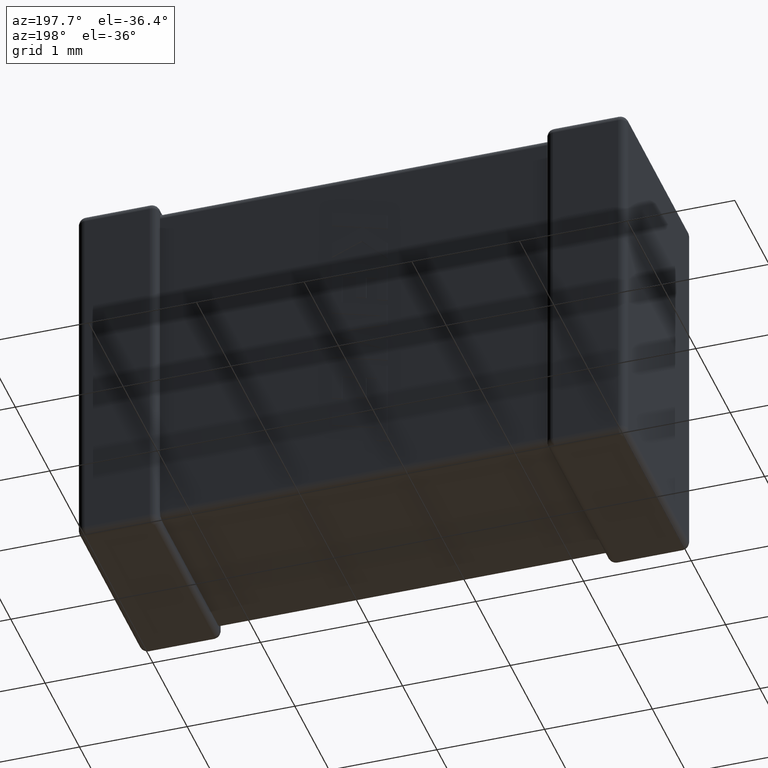
[diagram: clean part render]
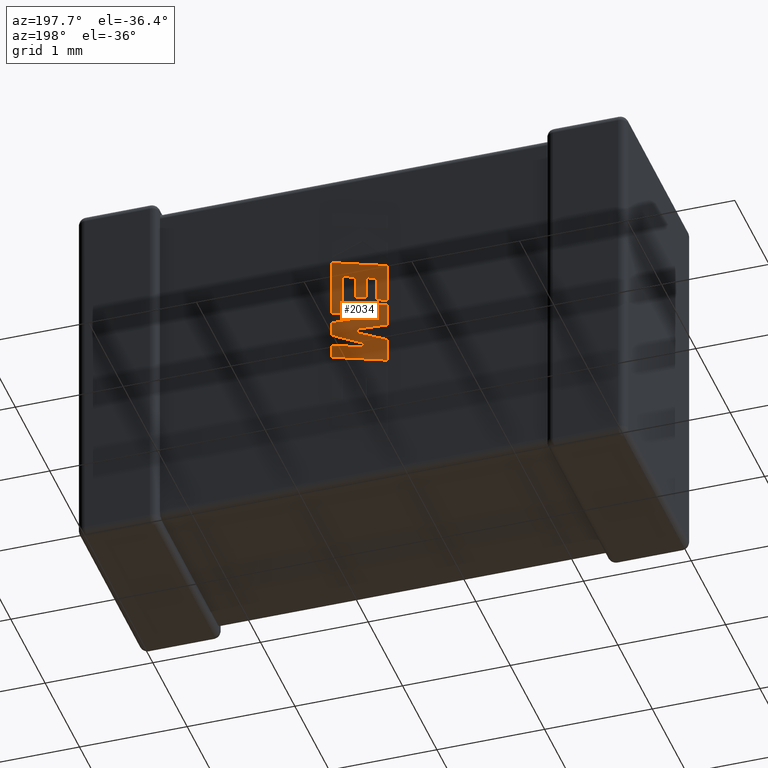
[diagram: same view with one face highlighted and labeled with its STEP entity id]
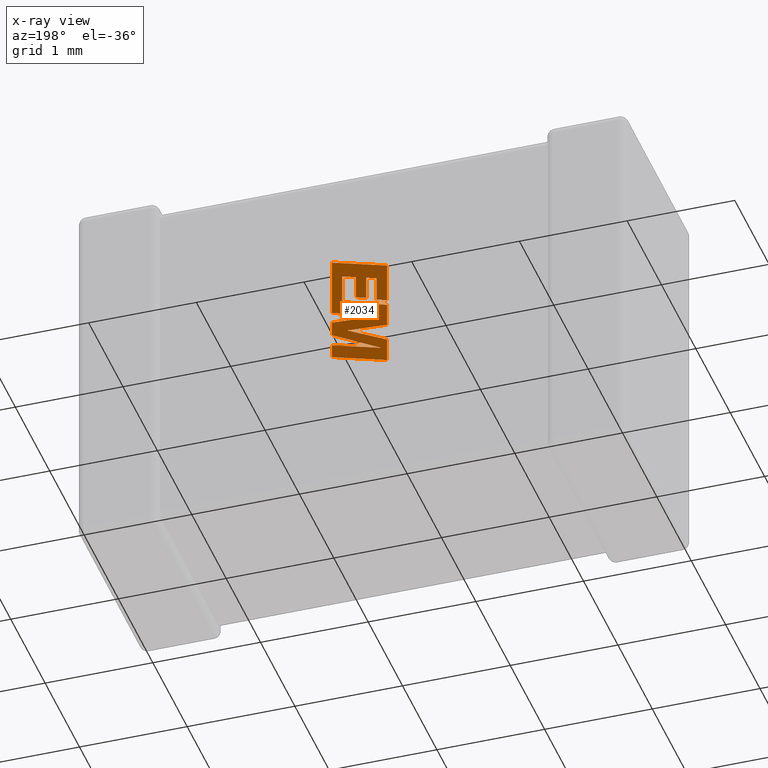
[diagram: x-ray of the same camera — body ghosted, the highlighted face saturated]
A machine part, auxiliary view. The second image highlights one B-rep face of the part: STEP entity #2034.
The next image is the same camera in x-ray: the body ghosted, the highlighted face saturated — about 0% of this face is hidden behind the body in this view.
In plain terms, the highlighted planar face has unit normal (0, -1, 0).
Its self-contained STEP definition (entity closure, byte-faithful):
#8 = CARTESIAN_POINT ( 'NONE',  ( 2.337401225116401360, 1.832200000000000051, -1.255934090619534649 ) ) ;
#12 = DIRECTION ( 'NONE',  ( 0.000000000000000000, 0.000000000000000000, 1.000000000000000000 ) ) ;
#36 = CARTESIAN_POINT ( 'NONE',  ( 2.239461455074788443, 1.832200000000000051, -1.788625948747415650 ) ) ;
#152 = VECTOR ( 'NONE', #548, 1000.000000000000000 ) ;
#173 = LINE ( 'NONE', #2790, #1969 ) ;
#176 = CARTESIAN_POINT ( 'NONE',  ( 2.754000000000007109, 1.832200000000000051, -1.650160399609248874 ) ) ;
#187 = ORIENTED_EDGE ( 'NONE', *, *, #1485, .T. ) ;
#250 = CARTESIAN_POINT ( 'NONE',  ( 2.337401225116401360, 1.832200000000000051, -1.255934090619534649 ) ) ;
#276 = DIRECTION ( 'NONE',  ( 0.8958676361826827250, 0.000000000000000000, 0.4443210308329466618 ) ) ;
#284 = VECTOR ( 'NONE', #3507, 1000.000000000000000 ) ;
#293 = ORIENTED_EDGE ( 'NONE', *, *, #1596, .T. ) ;
#370 = LINE ( 'NONE', #3753, #1376 ) ;
#376 = VECTOR ( 'NONE', #2067, 1000.000000000000114 ) ;
#428 = CARTESIAN_POINT ( 'NONE',  ( 2.656108729707781002, 1.832200000000000051, -1.164510496710604137 ) ) ;
#437 = DIRECTION ( 'NONE',  ( 0.000000000000000000, 0.000000000000000000, 1.000000000000000000 ) ) ;
#451 = LINE ( 'NONE', #176, #4086 ) ;
#492 = CARTESIAN_POINT ( 'NONE',  ( 2.754000000000007109, 1.832200000000000051, -1.898139623118868524 ) ) ;
#494 = ORIENTED_EDGE ( 'NONE', *, *, #3045, .T. ) ;
#548 = DIRECTION ( 'NONE',  ( 0.000000000000000000, 0.000000000000000000, -1.000000000000000000 ) ) ;
#559 = CARTESIAN_POINT ( 'NONE',  ( 2.607054402578548036, 1.832200000000000051, -1.768838267633026984 ) ) ;
#572 = DIRECTION ( 'NONE',  ( -0.8843386665637650301, 0.000000000000000000, -0.4668459304955136502 ) ) ;
#578 = CARTESIAN_POINT ( 'NONE',  ( 2.239461455074788443, 1.832200000000000051, -1.569502186183909798 ) ) ;
#587 = VECTOR ( 'NONE', #3429, 1000.000000000000114 ) ;
#626 = CARTESIAN_POINT ( 'NONE',  ( 2.239461455074788443, 1.832200000000000051, -1.951152340343301539 ) ) ;
#637 = ORIENTED_EDGE ( 'NONE', *, *, #2905, .T. ) ;
#660 = CARTESIAN_POINT ( 'NONE',  ( 2.754000000000007109, 1.832200000000000051, -2.028891821030526010 ) ) ;
#688 = EDGE_CURVE ( 'NONE', #4521, #4432, #173, .T. ) ;
#709 = VERTEX_POINT ( 'NONE', #559 ) ;
#740 = VECTOR ( 'NONE', #3316, 1000.000000000000000 ) ;
#766 = VECTOR ( 'NONE', #2901, 1000.000000000000000 ) ;
#789 = VERTEX_POINT ( 'NONE', #4118 ) ;
#803 = LINE ( 'NONE', #428, #1151 ) ;
#808 = CARTESIAN_POINT ( 'NONE',  ( 2.239461455074788443, 1.832200000000000051, -1.569502186183909798 ) ) ;
#836 = CARTESIAN_POINT ( 'NONE',  ( 2.337401225116401360, 1.832200000000000051, -1.490363109686198895 ) ) ;
#838 = VECTOR ( 'NONE', #1605, 1000.000000000000114 ) ;
#890 = VERTEX_POINT ( 'NONE', #578 ) ;
#893 = LINE ( 'NONE', #2409, #3795 ) ;
#906 = ORIENTED_EDGE ( 'NONE', *, *, #4222, .T. ) ;
#956 = VERTEX_POINT ( 'NONE', #3778 ) ;
#971 = VERTEX_POINT ( 'NONE', #2708 ) ;
#978 = VERTEX_POINT ( 'NONE', #4204 ) ;
#995 = DIRECTION ( 'NONE',  ( -0.9617234872620624708, 0.000000000000000000, -0.2740217765953968931 ) ) ;
#1039 = DIRECTION ( 'NONE',  ( 0.000000000000000000, 0.000000000000000000, -1.000000000000000000 ) ) ;
#1104 = EDGE_LOOP ( 'NONE', ( #2712, #4072, #293, #1717, #1889, #494, #3743, #1909, #3892, #906, #1885, #3270, #1647, #4438, #1733, #2625, #2663, #187, #2981, #637, #3881, #1663, #3121 ) ) ;
#1118 = CARTESIAN_POINT ( 'NONE',  ( 2.433105313117772006, 1.832200000000000051, -1.228085846872917664 ) ) ;
#1136 = CARTESIAN_POINT ( 'NONE',  ( 2.754000000000007109, 1.832200000000000051, -1.898139623118868524 ) ) ;
#1137 = VERTEX_POINT ( 'NONE', #3724 ) ;
#1148 = EDGE_CURVE ( 'NONE', #3746, #890, #2670, .T. ) ;
#1151 = VECTOR ( 'NONE', #995, 1000.000000000000000 ) ;
#1194 = VERTEX_POINT ( 'NONE', #2961 ) ;
#1198 = VECTOR ( 'NONE', #4748, 1000.000000000000227 ) ;
#1208 = DIRECTION ( 'NONE',  ( 0.000000000000000000, 0.000000000000000000, -1.000000000000000000 ) ) ;
#1230 = EDGE_CURVE ( 'NONE', #971, #3372, #1572, .T. ) ;
#1245 = DIRECTION ( 'NONE',  ( 0.000000000000000000, 0.000000000000000000, 1.000000000000000000 ) ) ;
#1376 = VECTOR ( 'NONE', #437, 1000.000000000000000 ) ;
#1431 = LINE ( 'NONE', #2928, #1864 ) ;
#1485 = EDGE_CURVE ( 'NONE', #1194, #978, #4783, .T. ) ;
#1528 = VECTOR ( 'NONE', #1039, 1000.000000000000000 ) ;
#1561 = LINE ( 'NONE', #2396, #152 ) ;
#1572 = LINE ( 'NONE', #1674, #376 ) ;
#1587 = VECTOR ( 'NONE', #3023, 1000.000000000000227 ) ;
#1594 = CARTESIAN_POINT ( 'NONE',  ( 2.754000000000007109, 1.832200000000000051, -1.787331774155181074 ) ) ;
#1596 = EDGE_CURVE ( 'NONE', #709, #3746, #2754, .T. ) ;
#1605 = DIRECTION ( 'NONE',  ( 0.9610853065513847993, 0.000000000000000000, 0.2762517575166369421 ) ) ;
#1637 = EDGE_CURVE ( 'NONE', #1137, #1194, #4220, .T. ) ;
#1647 = ORIENTED_EDGE ( 'NONE', *, *, #3029, .T. ) ;
#1663 = ORIENTED_EDGE ( 'NONE', *, *, #1922, .T. ) ;
#1674 = CARTESIAN_POINT ( 'NONE',  ( 2.528225839607042058, 1.832200000000000051, -1.421762559585259877 ) ) ;
#1717 = ORIENTED_EDGE ( 'NONE', *, *, #1148, .T. ) ;
#1733 = ORIENTED_EDGE ( 'NONE', *, *, #2697, .T. ) ;
#1745 = VERTEX_POINT ( 'NONE', #1118 ) ;
#1759 = CARTESIAN_POINT ( 'NONE',  ( 2.239461455074788443, 1.832200000000000051, -1.788625948747415650 ) ) ;
#1785 = LINE ( 'NONE', #3273, #766 ) ;
#1826 = VECTOR ( 'NONE', #572, 1000.000000000000114 ) ;
#1835 = EDGE_CURVE ( 'NONE', #978, #2026, #451, .T. ) ;
#1863 = VECTOR ( 'NONE', #2992, 1000.000000000000227 ) ;
#1864 = VECTOR ( 'NONE', #276, 1000.000000000000114 ) ;
#1885 = ORIENTED_EDGE ( 'NONE', *, *, #1951, .T. ) ;
#1889 = ORIENTED_EDGE ( 'NONE', *, *, #4636, .T. ) ;
#1898 = CARTESIAN_POINT ( 'NONE',  ( 2.433105313117772006, 1.832200000000000051, -1.228085846872917664 ) ) ;
#1904 = EDGE_CURVE ( 'NONE', #956, #4521, #3201, .T. ) ;
#1909 = ORIENTED_EDGE ( 'NONE', *, *, #3648, .T. ) ;
#1910 = LINE ( 'NONE', #2145, #3960 ) ;
#1922 = EDGE_CURVE ( 'NONE', #2495, #956, #4071, .T. ) ;
#1941 = CARTESIAN_POINT ( 'NONE',  ( 2.607054402578548036, 1.832200000000000051, -1.768838267633026984 ) ) ;
#1944 = FACE_OUTER_BOUND ( 'NONE', #1104, .T. ) ;
#1951 = EDGE_CURVE ( 'NONE', #1745, #3989, #4122, .T. ) ;
#1954 = DIRECTION ( 'NONE',  ( 0.000000000000000000, 0.000000000000000000, -1.000000000000000000 ) ) ;
#1969 = VECTOR ( 'NONE', #1992, 1000.000000000000000 ) ;
#1992 = DIRECTION ( 'NONE',  ( 0.000000000000000000, 0.000000000000000000, 1.000000000000000000 ) ) ;
#2026 = VERTEX_POINT ( 'NONE', #1594 ) ;
#2034 = ADVANCED_FACE ( 'NONE', ( #1944 ), #4212, .F. ) ;
#2067 = DIRECTION ( 'NONE',  ( -0.9615454294334447871, 0.000000000000000000, -0.2746459304917005517 ) ) ;
#2138 = VECTOR ( 'NONE', #3802, 999.9999999999998863 ) ;
#2145 = CARTESIAN_POINT ( 'NONE',  ( 2.239461455074788443, 1.832200000000000051, -1.138056229662791852 ) ) ;
#2162 = VECTOR ( 'NONE', #12, 1000.000000000000000 ) ;
#2197 = LINE ( 'NONE', #2563, #2162 ) ;
#2273 = VERTEX_POINT ( 'NONE', #3912 ) ;
#2396 = CARTESIAN_POINT ( 'NONE',  ( 2.754000000000007109, 1.832200000000000051, -0.9899927494813206552 ) ) ;
#2409 = CARTESIAN_POINT ( 'NONE',  ( 2.293713901613331441, 1.832200000000000051, -2.030318652395434409 ) ) ;
#2420 = LINE ( 'NONE', #3961, #1826 ) ;
#2483 = LINE ( 'NONE', #250, #1528 ) ;
#2495 = VERTEX_POINT ( 'NONE', #492 ) ;
#2517 = EDGE_CURVE ( 'NONE', #4603, #3942, #803, .T. ) ;
#2546 = CARTESIAN_POINT ( 'NONE',  ( 2.656108729707781002, 1.832200000000000051, -1.164510496710604137 ) ) ;
#2563 = CARTESIAN_POINT ( 'NONE',  ( 2.239461455074788443, 1.832200000000000051, -1.518180063271352687 ) ) ;
#2578 = CARTESIAN_POINT ( 'NONE',  ( 2.295919857998912850, 1.832200000000000051, -1.675837106146426336 ) ) ;
#2625 = ORIENTED_EDGE ( 'NONE', *, *, #2820, .T. ) ;
#2657 = EDGE_CURVE ( 'NONE', #3680, #2495, #893, .T. ) ;
#2663 = ORIENTED_EDGE ( 'NONE', *, *, #1637, .T. ) ;
#2670 = LINE ( 'NONE', #36, #4175 ) ;
#2673 = VECTOR ( 'NONE', #1245, 1000.000000000000000 ) ;
#2697 = EDGE_CURVE ( 'NONE', #3882, #2273, #1910, .T. ) ;
#2708 = CARTESIAN_POINT ( 'NONE',  ( 2.528225839607042058, 1.832200000000000051, -1.421762559585259877 ) ) ;
#2712 = ORIENTED_EDGE ( 'NONE', *, *, #688, .T. ) ;
#2723 = CARTESIAN_POINT ( 'NONE',  ( 2.754000000000007109, 1.832200000000000051, -1.544308912229137354 ) ) ;
#2725 = LINE ( 'NONE', #3440, #2673 ) ;
#2736 = EDGE_CURVE ( 'NONE', #4432, #709, #1431, .T. ) ;
#2754 = LINE ( 'NONE', #1941, #587 ) ;
#2790 = CARTESIAN_POINT ( 'NONE',  ( 2.239461455074788443, 1.832200000000000051, -2.176825446628522176 ) ) ;
#2820 = EDGE_CURVE ( 'NONE', #2273, #1137, #1561, .T. ) ;
#2892 = VERTEX_POINT ( 'NONE', #3635 ) ;
#2901 = DIRECTION ( 'NONE',  ( 0.000000000000000000, 0.000000000000000000, -1.000000000000000000 ) ) ;
#2905 = EDGE_CURVE ( 'NONE', #2026, #3680, #2420, .T. ) ;
#2928 = CARTESIAN_POINT ( 'NONE',  ( 2.239461455074788443, 1.832200000000000051, -1.951152340343301539 ) ) ;
#2961 = CARTESIAN_POINT ( 'NONE',  ( 2.295919857998912850, 1.832200000000000051, -1.675837106146426336 ) ) ;
#2981 = ORIENTED_EDGE ( 'NONE', *, *, #1835, .T. ) ;
#2992 = DIRECTION ( 'NONE',  ( 0.9984327301130250243, 0.000000000000000000, 0.05596501978067342647 ) ) ;
#3023 = DIRECTION ( 'NONE',  ( -0.9601763114327565019, 0.000000000000000000, -0.2793947940878393488 ) ) ;
#3029 = EDGE_CURVE ( 'NONE', #789, #3636, #3875, .T. ) ;
#3045 = EDGE_CURVE ( 'NONE', #2892, #4603, #2725, .T. ) ;
#3072 = CARTESIAN_POINT ( 'NONE',  ( -0.6990152987310016552, 1.832200000000000051, 0.007919489514314502487 ) ) ;
#3081 = AXIS2_PLACEMENT_3D ( 'NONE', #3072, #4545, #1208 ) ;
#3121 = ORIENTED_EDGE ( 'NONE', *, *, #1904, .T. ) ;
#3201 = LINE ( 'NONE', #660, #1198 ) ;
#3270 = ORIENTED_EDGE ( 'NONE', *, *, #3819, .T. ) ;
#3273 = CARTESIAN_POINT ( 'NONE',  ( 2.528225839607042058, 1.832200000000000051, -1.200947889792602474 ) ) ;
#3316 = DIRECTION ( 'NONE',  ( 0.000000000000000000, 0.000000000000000000, -1.000000000000000000 ) ) ;
#3372 = VERTEX_POINT ( 'NONE', #3436 ) ;
#3429 = DIRECTION ( 'NONE',  ( -0.9985542843760948362, 0.000000000000000000, -0.05375259206908060416 ) ) ;
#3436 = CARTESIAN_POINT ( 'NONE',  ( 2.433105313117772006, 1.832200000000000051, -1.448931806827066682 ) ) ;
#3440 = CARTESIAN_POINT ( 'NONE',  ( 2.656108729707781002, 1.832200000000000051, -1.449742222008734815 ) ) ;
#3507 = DIRECTION ( 'NONE',  ( -0.9611638845408968512, 0.000000000000000000, -0.2759782365590690567 ) ) ;
#3508 = CARTESIAN_POINT ( 'NONE',  ( 2.293713901613331441, 1.832200000000000051, -2.030318652395434409 ) ) ;
#3534 = EDGE_CURVE ( 'NONE', #3636, #3882, #2197, .T. ) ;
#3584 = CARTESIAN_POINT ( 'NONE',  ( 2.239461455074788443, 1.832200000000000051, -2.176825446628522176 ) ) ;
#3620 = DIRECTION ( 'NONE',  ( 0.9610029908221285888, 0.000000000000000000, 0.2765379750249931656 ) ) ;
#3621 = CARTESIAN_POINT ( 'NONE',  ( 2.239461455074788443, 1.832200000000000051, -1.518180063271352687 ) ) ;
#3635 = CARTESIAN_POINT ( 'NONE',  ( 2.656108729707781002, 1.832200000000000051, -1.449742222008734815 ) ) ;
#3636 = VERTEX_POINT ( 'NONE', #3621 ) ;
#3648 = EDGE_CURVE ( 'NONE', #3942, #971, #1785, .T. ) ;
#3680 = VERTEX_POINT ( 'NONE', #3508 ) ;
#3724 = CARTESIAN_POINT ( 'NONE',  ( 2.754000000000007109, 1.832200000000000051, -1.544308912229137354 ) ) ;
#3743 = ORIENTED_EDGE ( 'NONE', *, *, #2517, .T. ) ;
#3746 = VERTEX_POINT ( 'NONE', #1759 ) ;
#3753 = CARTESIAN_POINT ( 'NONE',  ( 2.433105313117772006, 1.832200000000000051, -1.448931806827066682 ) ) ;
#3778 = CARTESIAN_POINT ( 'NONE',  ( 2.754000000000007109, 1.832200000000000051, -2.028891821030526010 ) ) ;
#3795 = VECTOR ( 'NONE', #4263, 1000.000000000000114 ) ;
#3802 = DIRECTION ( 'NONE',  ( -0.9619530280415479195, 0.000000000000000000, -0.2732148821746301914 ) ) ;
#3819 = EDGE_CURVE ( 'NONE', #3989, #789, #2483, .T. ) ;
#3875 = LINE ( 'NONE', #836, #2138 ) ;
#3881 = ORIENTED_EDGE ( 'NONE', *, *, #2657, .T. ) ;
#3882 = VERTEX_POINT ( 'NONE', #4681 ) ;
#3892 = ORIENTED_EDGE ( 'NONE', *, *, #1230, .T. ) ;
#3912 = CARTESIAN_POINT ( 'NONE',  ( 2.754000000000007109, 1.832200000000000051, -0.9899927494813206552 ) ) ;
#3942 = VERTEX_POINT ( 'NONE', #4494 ) ;
#3960 = VECTOR ( 'NONE', #3620, 1000.000000000000114 ) ;
#3961 = CARTESIAN_POINT ( 'NONE',  ( 2.754000000000007109, 1.832200000000000051, -1.787331774155181074 ) ) ;
#3989 = VERTEX_POINT ( 'NONE', #8 ) ;
#4071 = LINE ( 'NONE', #1136, #740 ) ;
#4072 = ORIENTED_EDGE ( 'NONE', *, *, #2736, .T. ) ;
#4086 = VECTOR ( 'NONE', #1954, 1000.000000000000000 ) ;
#4118 = CARTESIAN_POINT ( 'NONE',  ( 2.337401225116401360, 1.832200000000000051, -1.490363109686198895 ) ) ;
#4122 = LINE ( 'NONE', #1898, #1587 ) ;
#4124 = DIRECTION ( 'NONE',  ( 0.000000000000000000, 0.000000000000000000, 1.000000000000000000 ) ) ;
#4175 = VECTOR ( 'NONE', #4124, 1000.000000000000000 ) ;
#4204 = CARTESIAN_POINT ( 'NONE',  ( 2.754000000000007109, 1.832200000000000051, -1.650160399609248874 ) ) ;
#4212 = PLANE ( 'NONE',  #3081 ) ;
#4220 = LINE ( 'NONE', #2723, #284 ) ;
#4222 = EDGE_CURVE ( 'NONE', #3372, #1745, #370, .T. ) ;
#4263 = DIRECTION ( 'NONE',  ( 0.9611542233438712390, 0.000000000000000000, 0.2760118818968482213 ) ) ;
#4432 = VERTEX_POINT ( 'NONE', #626 ) ;
#4438 = ORIENTED_EDGE ( 'NONE', *, *, #3534, .T. ) ;
#4494 = CARTESIAN_POINT ( 'NONE',  ( 2.528225839607042058, 1.832200000000000051, -1.200947889792602474 ) ) ;
#4521 = VERTEX_POINT ( 'NONE', #3584 ) ;
#4545 = DIRECTION ( 'NONE',  ( 0.000000000000000000, -1.000000000000000000, 0.000000000000000000 ) ) ;
#4598 = LINE ( 'NONE', #808, #838 ) ;
#4603 = VERTEX_POINT ( 'NONE', #2546 ) ;
#4636 = EDGE_CURVE ( 'NONE', #890, #2892, #4598, .T. ) ;
#4681 = CARTESIAN_POINT ( 'NONE',  ( 2.239461455074788443, 1.832200000000000051, -1.138056229662791852 ) ) ;
#4748 = DIRECTION ( 'NONE',  ( -0.9610674221107078363, 0.000000000000000000, -0.2763139702539094134 ) ) ;
#4783 = LINE ( 'NONE', #2578, #1863 ) ;